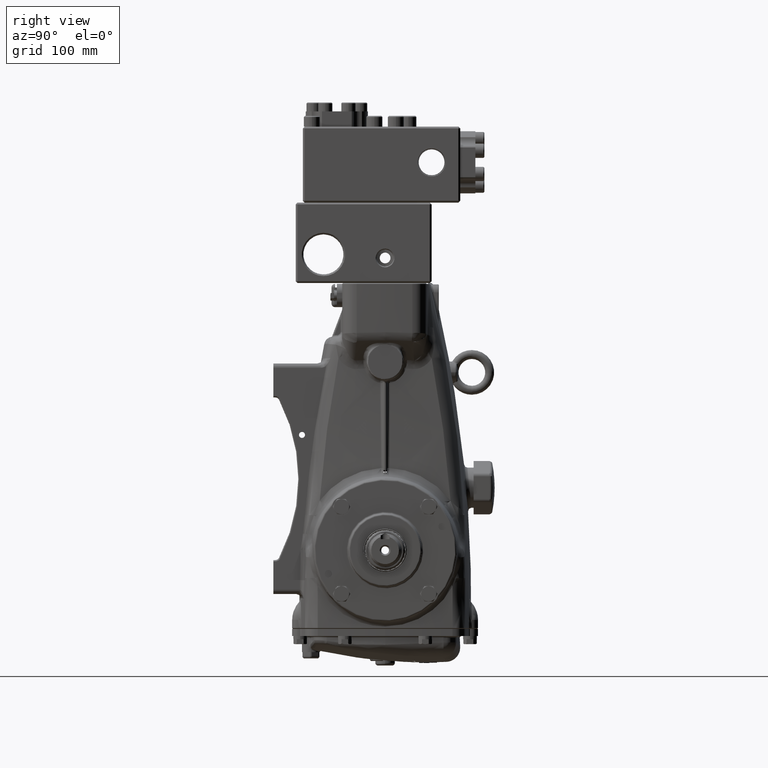
[diagram: clean part render]
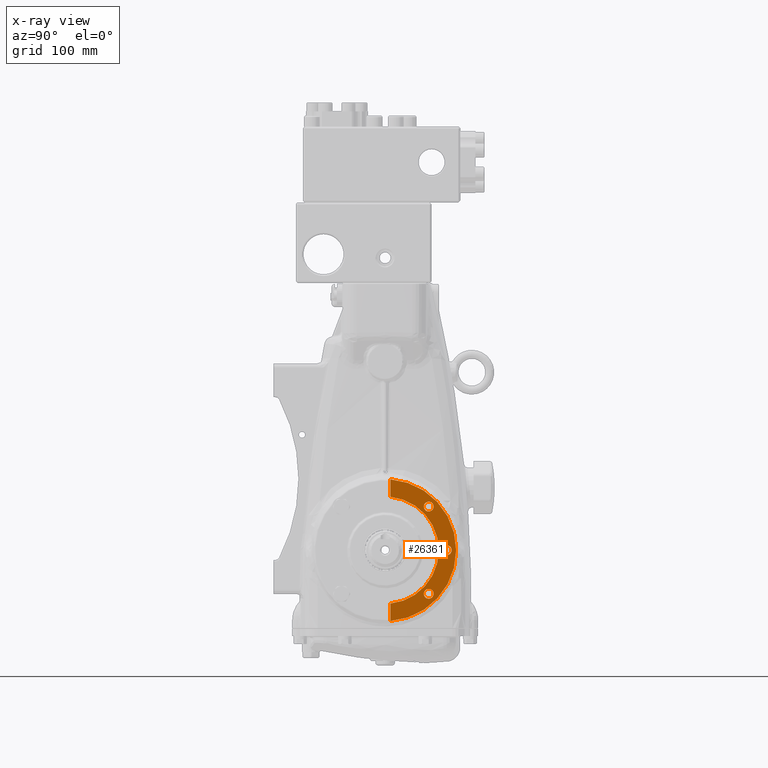
[diagram: x-ray — body ghosted, one internal face saturated and labeled with its STEP entity id]
A machine part, right view, then the same camera in x-ray: the body is ghosted and one INTERNAL B-rep face — a face not visible from any outside direction — is saturated and labeled: STEP entity #26361.
In plain terms, the highlighted planar face has unit normal (1, 0, -0).
Its self-contained STEP definition (entity closure, byte-faithful):
#892 = CARTESIAN_POINT ( 'NONE',  ( 4.921259842519683403, 2.137416059128843582, 1.920880626057909213 ) ) ;
#1947 = AXIS2_PLACEMENT_3D ( 'NONE', #23840, #61653, #99423 ) ;
#2446 = ORIENTED_EDGE ( 'NONE', *, *, #115117, .F. ) ;
#4268 = EDGE_CURVE ( 'NONE', #45131, #20031, #118867, .T. ) ;
#5565 = EDGE_CURVE ( 'NONE', #20031, #122064, #80350, .T. ) ;
#5716 = EDGE_CURVE ( 'NONE', #87270, #62050, #112527, .T. ) ;
#6273 = AXIS2_PLACEMENT_3D ( 'NONE', #56122, #93925, #9031 ) ;
#8361 = DIRECTION ( 'NONE',  ( -1.000000000000000000, -2.273325955187833937E-16, 6.855225737192738427E-17 ) ) ;
#9031 = DIRECTION ( 'NONE',  ( 0.0000000000000000000, 1.000000000000000000, -8.831319514063748507E-15 ) ) ;
#12821 = EDGE_LOOP ( 'NONE', ( #29717, #2446 ) ) ;
#13681 = DIRECTION ( 'NONE',  ( 0.0000000000000000000, 1.000000000000000000, -8.831319514063748507E-15 ) ) ;
#14001 = VERTEX_POINT ( 'NONE', #80289 ) ;
#14205 = CARTESIAN_POINT ( 'NONE',  ( 4.921259842519684291, 8.794565639485928968E-17, 2.073566528365658705E-16 ) ) ;
#15380 = CARTESIAN_POINT ( 'NONE',  ( 4.921259842519683403, 2.716535433070866645, -2.301553677170459890E-14 ) ) ;
#15868 = CARTESIAN_POINT ( 'NONE',  ( 4.921259842519684291, 0.2362204724409184553, -3.120994550013501012 ) ) ;
#16447 = CARTESIAN_POINT ( 'NONE',  ( 4.921259842519683403, 1.704345192987062996, -1.920880626057956952 ) ) ;
#17959 = CARTESIAN_POINT ( 'NONE',  ( 4.921259842519684291, 0.2362204724409652234, 2.350364024661305340 ) ) ;
#19016 = DIRECTION ( 'NONE',  ( 0.0000000000000000000, 1.000000000000000000, -8.831319514063748507E-15 ) ) ;
#20031 = VERTEX_POINT ( 'NONE', #22254 ) ;
#22254 = CARTESIAN_POINT ( 'NONE',  ( 4.921259842519684291, 0.2362204724409250611, -2.350364024661308449 ) ) ;
#22741 = AXIS2_PLACEMENT_3D ( 'NONE', #60789, #98555, #13681 ) ;
#23031 = EDGE_CURVE ( 'NONE', #49522, #24025, #48493, .T. ) ;
#23840 = CARTESIAN_POINT ( 'NONE',  ( 4.921259842519684291, 8.794565639485928968E-17, 2.073566528365658705E-16 ) ) ;
#24025 = VERTEX_POINT ( 'NONE', #94327 ) ;
#24513 = ORIENTED_EDGE ( 'NONE', *, *, #5565, .T. ) ;
#24753 = AXIS2_PLACEMENT_3D ( 'NONE', #66139, #103885, #19016 ) ;
#26361 = ADVANCED_FACE ( 'NONE', ( #80271, #117925, #33129, #70968 ), #108682, .F. ) ;
#28706 = CARTESIAN_POINT ( 'NONE',  ( 4.921259842519684291, 0.2362204724409718015, 3.120994550013496571 ) ) ;
#29717 = ORIENTED_EDGE ( 'NONE', *, *, #23031, .F. ) ;
#31410 = EDGE_LOOP ( 'NONE', ( #121070, #109971 ) ) ;
#32735 = AXIS2_PLACEMENT_3D ( 'NONE', #101607, #45227, #83048 ) ;
#32828 = CIRCLE ( 'NONE', #102076, 0.2165354330708660624 ) ;
#33129 = FACE_BOUND ( 'NONE', #107678, .T. ) ;
#34082 = CARTESIAN_POINT ( 'NONE',  ( 4.921259842519684291, 0.2362204724409250611, -2.350364024661308449 ) ) ;
#34237 = EDGE_CURVE ( 'NONE', #86795, #45131, #93070, .T. ) ;
#38692 = ORIENTED_EDGE ( 'NONE', *, *, #4268, .T. ) ;
#39635 = AXIS2_PLACEMENT_3D ( 'NONE', #14205, #51996, #89824 ) ;
#40813 = CARTESIAN_POINT ( 'NONE',  ( 4.921259842519684291, 8.794565639485928968E-17, 2.073566528365658705E-16 ) ) ;
#40851 = EDGE_CURVE ( 'NONE', #77348, #14001, #78234, .T. ) ;
#43295 = AXIS2_PLACEMENT_3D ( 'NONE', #15380, #53177, #90993 ) ;
#44761 = CARTESIAN_POINT ( 'NONE',  ( 4.921259842519684291, 0.2362204724409708856, 3.120994550013497015 ) ) ;
#45131 = VERTEX_POINT ( 'NONE', #15868 ) ;
#45227 = DIRECTION ( 'NONE',  ( -1.000000000000000000, -2.273325955187833937E-16, 6.855225737192738427E-17 ) ) ;
#46152 = DIRECTION ( 'NONE',  ( 0.0000000000000000000, 1.000000000000000000, -8.831319514063748507E-15 ) ) ;
#48493 = CIRCLE ( 'NONE', #22741, 0.2165354330708660624 ) ;
#48658 = AXIS2_PLACEMENT_3D ( 'NONE', #40813, #78668, #116343 ) ;
#49522 = VERTEX_POINT ( 'NONE', #892 ) ;
#51996 = DIRECTION ( 'NONE',  ( -1.000000000000000000, -2.273325955187833937E-16, 6.855225737192738427E-17 ) ) ;
#53177 = DIRECTION ( 'NONE',  ( -1.000000000000000000, -2.273325955187833937E-16, 6.855225737192738427E-17 ) ) ;
#55147 = CARTESIAN_POINT ( 'NONE',  ( 4.921259842519683403, 2.500000000000000000, -2.119095451369891762E-14 ) ) ;
#56122 = CARTESIAN_POINT ( 'NONE',  ( 4.921259842519683403, 1.920880626057977381, 1.920880626057910989 ) ) ;
#59728 = CIRCLE ( 'NONE', #6273, 0.2165354330708660624 ) ;
#60789 = CARTESIAN_POINT ( 'NONE',  ( 4.921259842519683403, 1.920880626057977381, 1.920880626057910989 ) ) ;
#61653 = DIRECTION ( 'NONE',  ( 1.000000000000000000, 2.273325955187833937E-16, -6.855225737192738427E-17 ) ) ;
#62050 = VERTEX_POINT ( 'NONE', #73544 ) ;
#66139 = CARTESIAN_POINT ( 'NONE',  ( 4.921259842519683403, 1.920880626057929197, -1.920880626057958951 ) ) ;
#66526 = DIRECTION ( 'NONE',  ( 6.855225737192543677E-17, 8.548717289613702206E-15, 1.000000000000000000 ) ) ;
#69985 = VECTOR ( 'NONE', #66526, 39.37007874015748143 ) ;
#70968 = FACE_OUTER_BOUND ( 'NONE', #114721, .T. ) ;
#71907 = DIRECTION ( 'NONE',  ( 6.855225737192543677E-17, 8.548717289613702206E-15, 1.000000000000000000 ) ) ;
#73544 = CARTESIAN_POINT ( 'NONE',  ( 4.921259842519683403, 2.933070866141732846, -2.486663697221150239E-14 ) ) ;
#75343 = ORIENTED_EDGE ( 'NONE', *, *, #40851, .F. ) ;
#76824 = EDGE_CURVE ( 'NONE', #62050, #87270, #86223, .T. ) ;
#77348 = VERTEX_POINT ( 'NONE', #16447 ) ;
#77417 = EDGE_CURVE ( 'NONE', #14001, #77348, #32828, .T. ) ;
#78234 = CIRCLE ( 'NONE', #24753, 0.2165354330708660624 ) ;
#78668 = DIRECTION ( 'NONE',  ( 1.000000000000000000, 2.273325955187833937E-16, -6.855225737192738427E-17 ) ) ;
#80271 = FACE_BOUND ( 'NONE', #12821, .T. ) ;
#80289 = CARTESIAN_POINT ( 'NONE',  ( 4.921259842519683403, 2.137416059128795176, -1.920880626057960727 ) ) ;
#80350 = CIRCLE ( 'NONE', #48658, 2.362204724409448620 ) ;
#83048 = DIRECTION ( 'NONE',  ( 0.0000000000000000000, 1.000000000000000000, -8.548717289613694317E-15 ) ) ;
#86223 = CIRCLE ( 'NONE', #32735, 0.2165354330708663400 ) ;
#86795 = VERTEX_POINT ( 'NONE', #44761 ) ;
#87096 = ORIENTED_EDGE ( 'NONE', *, *, #77417, .F. ) ;
#87270 = VERTEX_POINT ( 'NONE', #55147 ) ;
#89824 = DIRECTION ( 'NONE',  ( -1.745633686517541589E-16, 1.000000000000000000, -8.548717289613702206E-15 ) ) ;
#90993 = DIRECTION ( 'NONE',  ( 0.0000000000000000000, 1.000000000000000000, -8.548717289613694317E-15 ) ) ;
#92654 = ORIENTED_EDGE ( 'NONE', *, *, #34237, .T. ) ;
#93070 = CIRCLE ( 'NONE', #39635, 3.129921259842519898 ) ;
#93250 = CARTESIAN_POINT ( 'NONE',  ( 4.921259842519683403, 1.920880626057929197, -1.920880626057958951 ) ) ;
#93925 = DIRECTION ( 'NONE',  ( -1.000000000000000000, -2.273325955187833937E-16, 6.855225737192738427E-17 ) ) ;
#94327 = CARTESIAN_POINT ( 'NONE',  ( 4.921259842519683403, 1.704345192987111401, 1.920880626057912988 ) ) ;
#94936 = EDGE_CURVE ( 'NONE', #122064, #86795, #113524, .T. ) ;
#98555 = DIRECTION ( 'NONE',  ( -1.000000000000000000, -2.273325955187833937E-16, 6.855225737192738427E-17 ) ) ;
#99423 = DIRECTION ( 'NONE',  ( 2.273325955187839853E-16, -1.000000000000000000, 8.548717289613702206E-15 ) ) ;
#101607 = CARTESIAN_POINT ( 'NONE',  ( 4.921259842519683403, 2.716535433070866645, -2.301553677170459890E-14 ) ) ;
#102076 = AXIS2_PLACEMENT_3D ( 'NONE', #93250, #8361, #46152 ) ;
#103885 = DIRECTION ( 'NONE',  ( -1.000000000000000000, -2.273325955187833937E-16, 6.855225737192738427E-17 ) ) ;
#107359 = VECTOR ( 'NONE', #71907, 39.37007874015748143 ) ;
#107678 = EDGE_LOOP ( 'NONE', ( #87096, #75343 ) ) ;
#108146 = ORIENTED_EDGE ( 'NONE', *, *, #94936, .T. ) ;
#108682 = PLANE ( 'NONE',  #1947 ) ;
#109971 = ORIENTED_EDGE ( 'NONE', *, *, #5716, .F. ) ;
#112527 = CIRCLE ( 'NONE', #43295, 0.2165354330708663400 ) ;
#113524 = LINE ( 'NONE', #28706, #69985 ) ;
#114721 = EDGE_LOOP ( 'NONE', ( #24513, #108146, #92654, #38692 ) ) ;
#115117 = EDGE_CURVE ( 'NONE', #24025, #49522, #59728, .T. ) ;
#116343 = DIRECTION ( 'NONE',  ( 2.312964634635742957E-16, -1.000000000000000000, 8.548717289613702206E-15 ) ) ;
#117925 = FACE_BOUND ( 'NONE', #31410, .T. ) ;
#118867 = LINE ( 'NONE', #34082, #107359 ) ;
#121070 = ORIENTED_EDGE ( 'NONE', *, *, #76824, .F. ) ;
#122064 = VERTEX_POINT ( 'NONE', #17959 ) ;